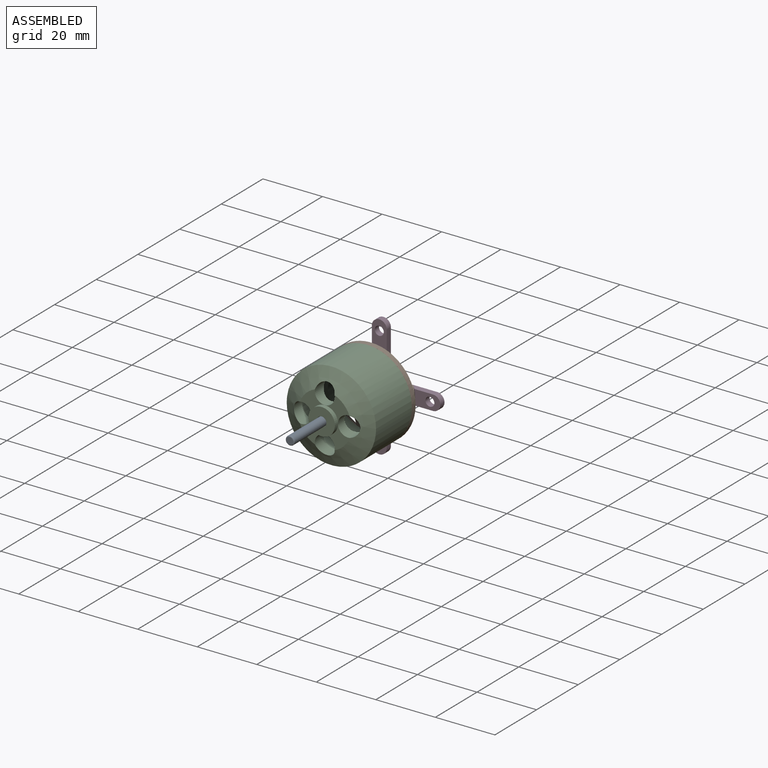
[diagram: assembled view]
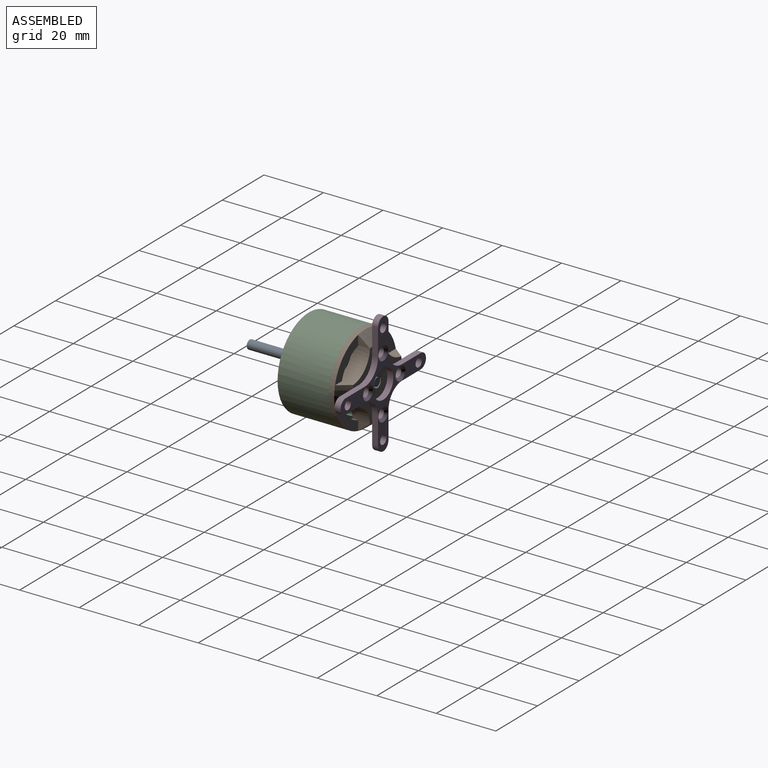
[diagram: assembled view, second angle]
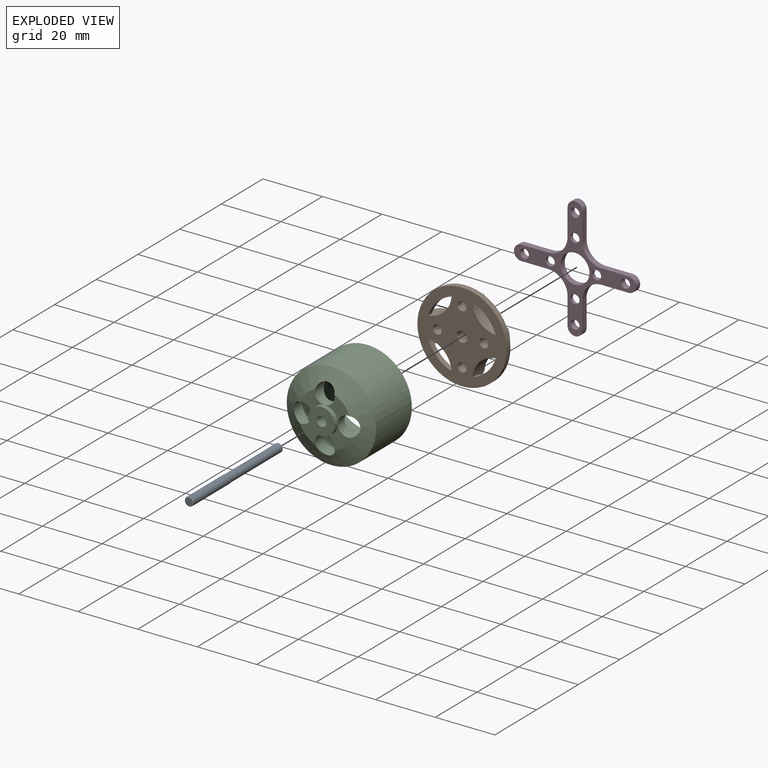
[diagram: exploded view]
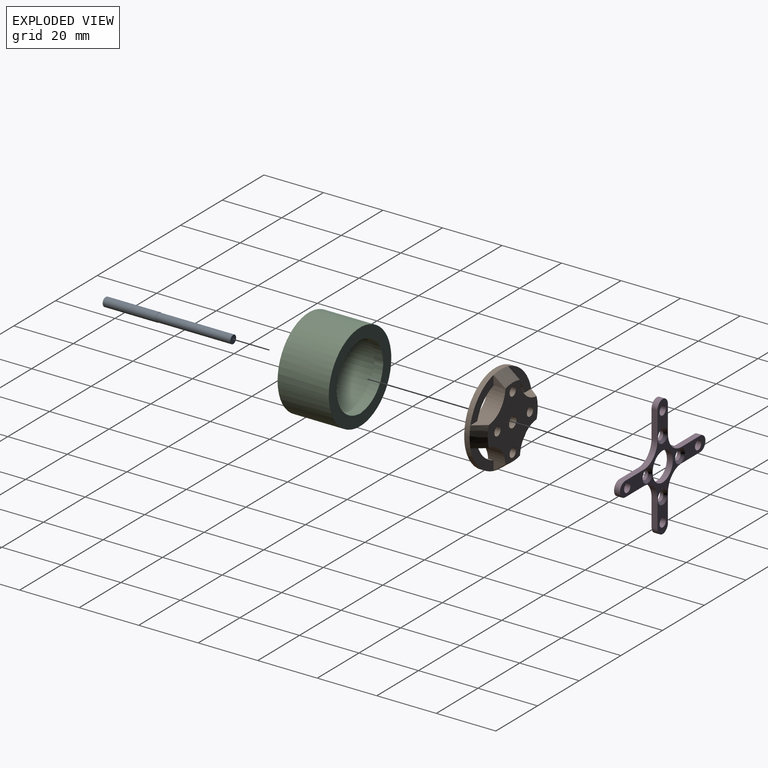
[diagram: exploded view, second angle]
ASSEMBLY  parts=4 mates=3
PART A: 6 faces, bbox 3.2x43x3.2 mm
  f0: plane 2.85x2.8mm, normal (0,1,0), area 6.2mm2, adj f1
  f1: cylinder r=1.4mm len=24.95mm, axis (0,-1,0), area 219.5mm2, adj f0,f2
  f2: cone r=8.39mm half-angle=73.3deg, axis (0,1,0), area 1mm2, adj f1,f3
  f3: cylinder r=1.5mm len=17.72mm, axis (0,-1,0), area 167mm2, adj f2,f5
  f4: plane 2.32x2.28mm, normal (0,-1,0), area 4.1mm2, adj f5
  f5: torus R=1.14mm, axis (0,-1,0), area 4.9mm2, adj f3,f4
PART B: 32 faces, bbox 30.2x5.8x30.4 mm
  f0: plane 4x3.11mm, normal (0,0,-1), area 6.2mm2, adj f5,f7,f8
  f1: plane 4x3.11mm, normal (1,0,0), area 6.2mm2, adj f5,f6,f8
  f2: plane 4x3.11mm, normal (0,0,1), area 6.2mm2, adj f7,f17,f19
  f3: plane 4x3.11mm, normal (1,0,0), area 6.2mm2, adj f17,f19,f20
  f4: plane 4x3.11mm, normal (-1,0,0), area 6.2mm2, adj f6,f15,f21
  f5: plane 11.09x11.09mm, normal (0,1,0), area 44.1mm2, adj f0,f1,f8,f9,f27
  f6: cone r=13.5mm half-angle=36.9deg, axis (0,-1,0), area 35.4mm2, adj f1,f4,f23,f27
  f7: cone r=13.5mm half-angle=36.9deg, axis (0,-1,0), area 35.4mm2, adj f0,f2,f23,f27
  f8: cylinder r=8.52mm len=7.98mm, axis (0,-1,0), area 71mm2, adj f0,f1,f5,f9,f23,f24
  f9: cylinder r=11.85mm len=7.81mm, axis (0,1,0), area 20.7mm2, adj f5,f8,f24
  f10: cylinder r=1.5mm len=5.8mm, axis (0,-1,0), area 54.7mm2, adj f23,f24
  f11: cylinder r=1.5mm len=5.8mm, axis (0,-1,0), area 54.7mm2, adj f23,f24
  f12: cylinder r=1.5mm len=5.8mm, axis (0,-1,0), area 54.7mm2, adj f23,f24
  f13: cylinder r=1.5mm len=5.8mm, axis (0,-1,0), area 54.7mm2, adj f23,f24
  f14: cylinder r=1.8mm len=5.8mm, axis (0,-1,0), area 65.6mm2, adj f23,f24
  f15: cylinder r=8.52mm len=7.98mm, axis (0,-1,0), area 71mm2, adj f4,f16,f21,f22,f23,f24
  f16: cylinder r=11.85mm len=7.81mm, axis (0,1,0), area 20.7mm2, adj f15,f21,f24
  f17: cylinder r=8.52mm len=7.98mm, axis (0,-1,0), area 71mm2, adj f2,f3,f18,f19,f23,f24
  f18: cylinder r=11.85mm len=7.81mm, axis (0,1,0), area 20.7mm2, adj f17,f19,f24
  f19: plane 11.09x11.09mm, normal (0,1,0), area 44.1mm2, adj f2,f3,f17,f18,f27
  f20: cone r=13.5mm half-angle=36.9deg, axis (0,-1,0), area 35.4mm2, adj f3,f23,f25,f27
  f21: plane 11.09x11.09mm, normal (0,1,0), area 44.1mm2, adj f4,f15,f16,f22,f27
  f22: plane 4x3.11mm, normal (0,0,-1), area 6.2mm2, adj f15,f21,f28
  f23: plane 24.06x24.06mm, normal (0,1,0), area 304.9mm2, adj f6,f7,f8,f10,f11,f12,f13,f14
  f24: plane 30.42x30.23mm, normal (0,-1,0), area 566.2mm2, adj f8,f9,f10,f11,f12,f13,f14,f15
  f25: plane 4x3.11mm, normal (-1,0,0), area 6.2mm2, adj f20,f29,f30
  f26: cylinder r=11.85mm len=7.81mm, axis (0,1,0), area 20.7mm2, adj f24,f29,f30
  f27: cylinder r=15mm len=30mm, axis (0,-1,0), area 169.6mm2, adj f5,f6,f7,f19,f20,f21,f24,f28
  f28: cone r=13.5mm half-angle=36.9deg, axis (0,-1,0), area 35.4mm2, adj f22,f23,f27,f31
  f29: cylinder r=8.52mm len=7.98mm, axis (0,-1,0), area 71mm2, adj f23,f24,f25,f26,f30,f31
  f30: plane 11.09x11.09mm, normal (0,1,0), area 44.1mm2, adj f25,f26,f27,f29,f31
  f31: plane 4x3.11mm, normal (0,0,1), area 6.2mm2, adj f28,f29,f30
PART C: 25 faces, bbox 30x21.9x30.6 mm
  f0: cylinder r=3.35mm len=3mm, axis (0,1,0), area 6mm2, adj f1,f7,f8,f9
  f1: cylinder r=11.05mm len=10.01mm, axis (0,-1,0), area 46.1mm2, adj f0,f2,f8,f9
  f2: cylinder r=3.35mm len=3mm, axis (0,1,0), area 6mm2, adj f1,f3,f8,f9
  f3: cylinder r=11.05mm len=10.01mm, axis (0,-1,0), area 46.1mm2, adj f2,f4,f8,f9
  f4: cylinder r=3.35mm len=3mm, axis (0,1,0), area 6mm2, adj f3,f5,f8,f9
  f5: cylinder r=11.05mm len=10.01mm, axis (0,-1,0), area 46.1mm2, adj f4,f6,f8,f9
  f6: cylinder r=3.35mm len=3mm, axis (0,1,0), area 6mm2, adj f5,f7,f8,f9
  f7: cylinder r=11.05mm len=10.01mm, axis (0,-1,0), area 46.1mm2, adj f0,f6,f8,f9
  f8: plane 30.56x30mm, normal (0,1,0), area 323mm2, adj f0,f1,f2,f3,f4,f5,f6,f7
  f9: plane 24.44x24mm, normal (0,-1,0), area 68.6mm2, adj f0,f1,f2,f3,f4,f5,f6,f7
  f10: plane 9.03x8.98mm, normal (0,-1,0), area 54.2mm2, adj f12,f18
  f11: plane 8.37x8.37mm, normal (0,-1,0), area 23.8mm2, adj f12,f17,f19,f22
  f12: cylinder r=4.45mm len=8.9mm, axis (0,-1,0), area 41.9mm2, adj f10,f11,f15,f20,f21
  f13: cylinder r=15mm len=30mm, axis (0,-1,0), area 1621.1mm2, adj f8,f22
  f14: cylinder r=3.35mm len=6.7mm, axis (0,1,0), area 83.3mm2, adj f15,f20,f22,f23
  f15: plane 8.37x8.37mm, normal (0,-1,0), area 23.8mm2, adj f12,f14,f17,f22
  f16: cylinder r=12mm len=24mm, axis (0,-1,0), area 902.4mm2, adj f9,f23
  f17: cylinder r=3.35mm len=6.7mm, axis (0,1,0), area 82.2mm2, adj f11,f15,f22,f23
  f18: cylinder r=1.6mm len=3.79mm, axis (0,-1,0), area 38.1mm2, adj f10,f23
  f19: cylinder r=3.35mm len=6.7mm, axis (0,1,0), area 82.1mm2, adj f11,f21,f22,f23
  f20: plane 8.37x8.37mm, normal (0,-1,0), area 23.8mm2, adj f12,f14,f22,f24
  f21: plane 8.37x8.37mm, normal (0,-1,0), area 23.8mm2, adj f12,f19,f22,f24
  f22: cone r=12mm half-angle=62.1deg, axis (0,1,0), area 477.1mm2, adj f11,f13,f14,f15,f17,f19,f20,f21
  f23: cone r=8.39mm half-angle=73.3deg, axis (0,1,0), area 316.5mm2, adj f14,f16,f17,f18,f19,f24
  f24: cylinder r=3.35mm len=6.7mm, axis (0,1,0), area 82.7mm2, adj f20,f21,f22,f23
PART D: 31 faces, bbox 41.1x2x41.1 mm
  f0: cylinder r=1.5mm len=3mm, axis (0,1,0), area 10.8mm2, adj f3,f20
  f1: cylinder r=1.5mm len=3mm, axis (0,1,0), area 10.8mm2, adj f3,f21
  f2: cylinder r=1.5mm len=3mm, axis (0,1,0), area 10.8mm2, adj f3,f27
  f3: plane 41.09x41.09mm, normal (0,-1,0), area 280.1mm2, adj f0,f1,f2,f4,f5,f6,f7,f8
  f4: cylinder r=2.5mm len=5mm, axis (0,1,0), area 15.7mm2, adj f3,f5,f19,f29
  f5: plane 9x2mm, normal (0,0,-1), area 18mm2, adj f3,f4,f6,f29
  f6: cylinder r=6.5mm len=6.5mm, axis (0,1,0), area 20.4mm2, adj f3,f5,f7,f29
  f7: plane 9x2mm, normal (1,0,0), area 18mm2, adj f3,f6,f8,f29
  f8: cylinder r=2.5mm len=5mm, axis (0,1,0), area 15.7mm2, adj f3,f7,f9,f29
  f9: plane 9x2mm, normal (-1,0,0), area 18mm2, adj f3,f8,f10,f29
  f10: cylinder r=6.5mm len=6.5mm, axis (0,1,0), area 20.4mm2, adj f3,f9,f11,f29
  f11: plane 9x2mm, normal (0,0,-1), area 18mm2, adj f3,f10,f12,f29
  f12: cylinder r=2.5mm len=5mm, axis (0,1,0), area 15.7mm2, adj f3,f11,f13,f29
  f13: plane 9x2mm, normal (0,0,1), area 18mm2, adj f3,f12,f14,f29
  f14: cylinder r=6.5mm len=6.5mm, axis (0,1,0), area 20.4mm2, adj f3,f13,f15,f29
  f15: plane 9x2mm, normal (-1,0,0), area 18mm2, adj f3,f14,f16,f29
  f16: cylinder r=2.5mm len=5mm, axis (0,1,0), area 15.7mm2, adj f3,f15,f17,f29
  f17: plane 9x2mm, normal (1,0,0), area 18mm2, adj f3,f16,f18,f29
  f18: cylinder r=6.5mm len=6.5mm, axis (0,1,0), area 20.4mm2, adj f3,f17,f19,f29
  f19: plane 9x2mm, normal (0,0,1), area 18mm2, adj f3,f4,f18,f29
  f20: cone r=1.93mm half-angle=45deg, axis (0,1,0), area 14.5mm2, adj f0,f29
  f21: cone r=1.93mm half-angle=45deg, axis (0,1,0), area 14.5mm2, adj f1,f29
  f22: cylinder r=1.5mm len=3mm, axis (0,1,0), area 18.8mm2, adj f3,f29
  f23: cylinder r=1.5mm len=3mm, axis (0,1,0), area 18.8mm2, adj f3,f29
  f24: cylinder r=4.85mm len=9.7mm, axis (0,1,0), area 60.9mm2, adj f3,f29
  f25: cylinder r=1.5mm len=3mm, axis (0,1,0), area 18.8mm2, adj f3,f29
  f26: cylinder r=1.5mm len=3mm, axis (0,1,0), area 18.8mm2, adj f3,f29
  f27: cone r=1.93mm half-angle=45deg, axis (0,1,0), area 14.5mm2, adj f2,f29
  f28: cylinder r=1.5mm len=3mm, axis (0,1,0), area 10.8mm2, adj f3,f30
  f29: plane 41.09x41.09mm, normal (0,1,0), area 239mm2, adj f4,f5,f6,f7,f8,f9,f10,f11
  f30: cone r=1.93mm half-angle=45deg, axis (0,1,0), area 14.5mm2, adj f28,f29
PLACE A t=(-29.47,28.5,0)mm
PLACE B t=(-29.5,29.5,0)mm
PLACE C t=(-29.5,29.5,0)mm
PLACE D at identity fixed
MATE fastened B.f23 <-> D.f3  axis (0,1,0) through (-29.47,49.5,-20)mm
MATE revolute C.f22 <-> B.f14  axis (0,1,0) through (-29.5,43.7,-20)mm
MATE revolute A.f2 <-> B.f23  axis (0,1,0) through (-29.47,49.5,-20)mm
